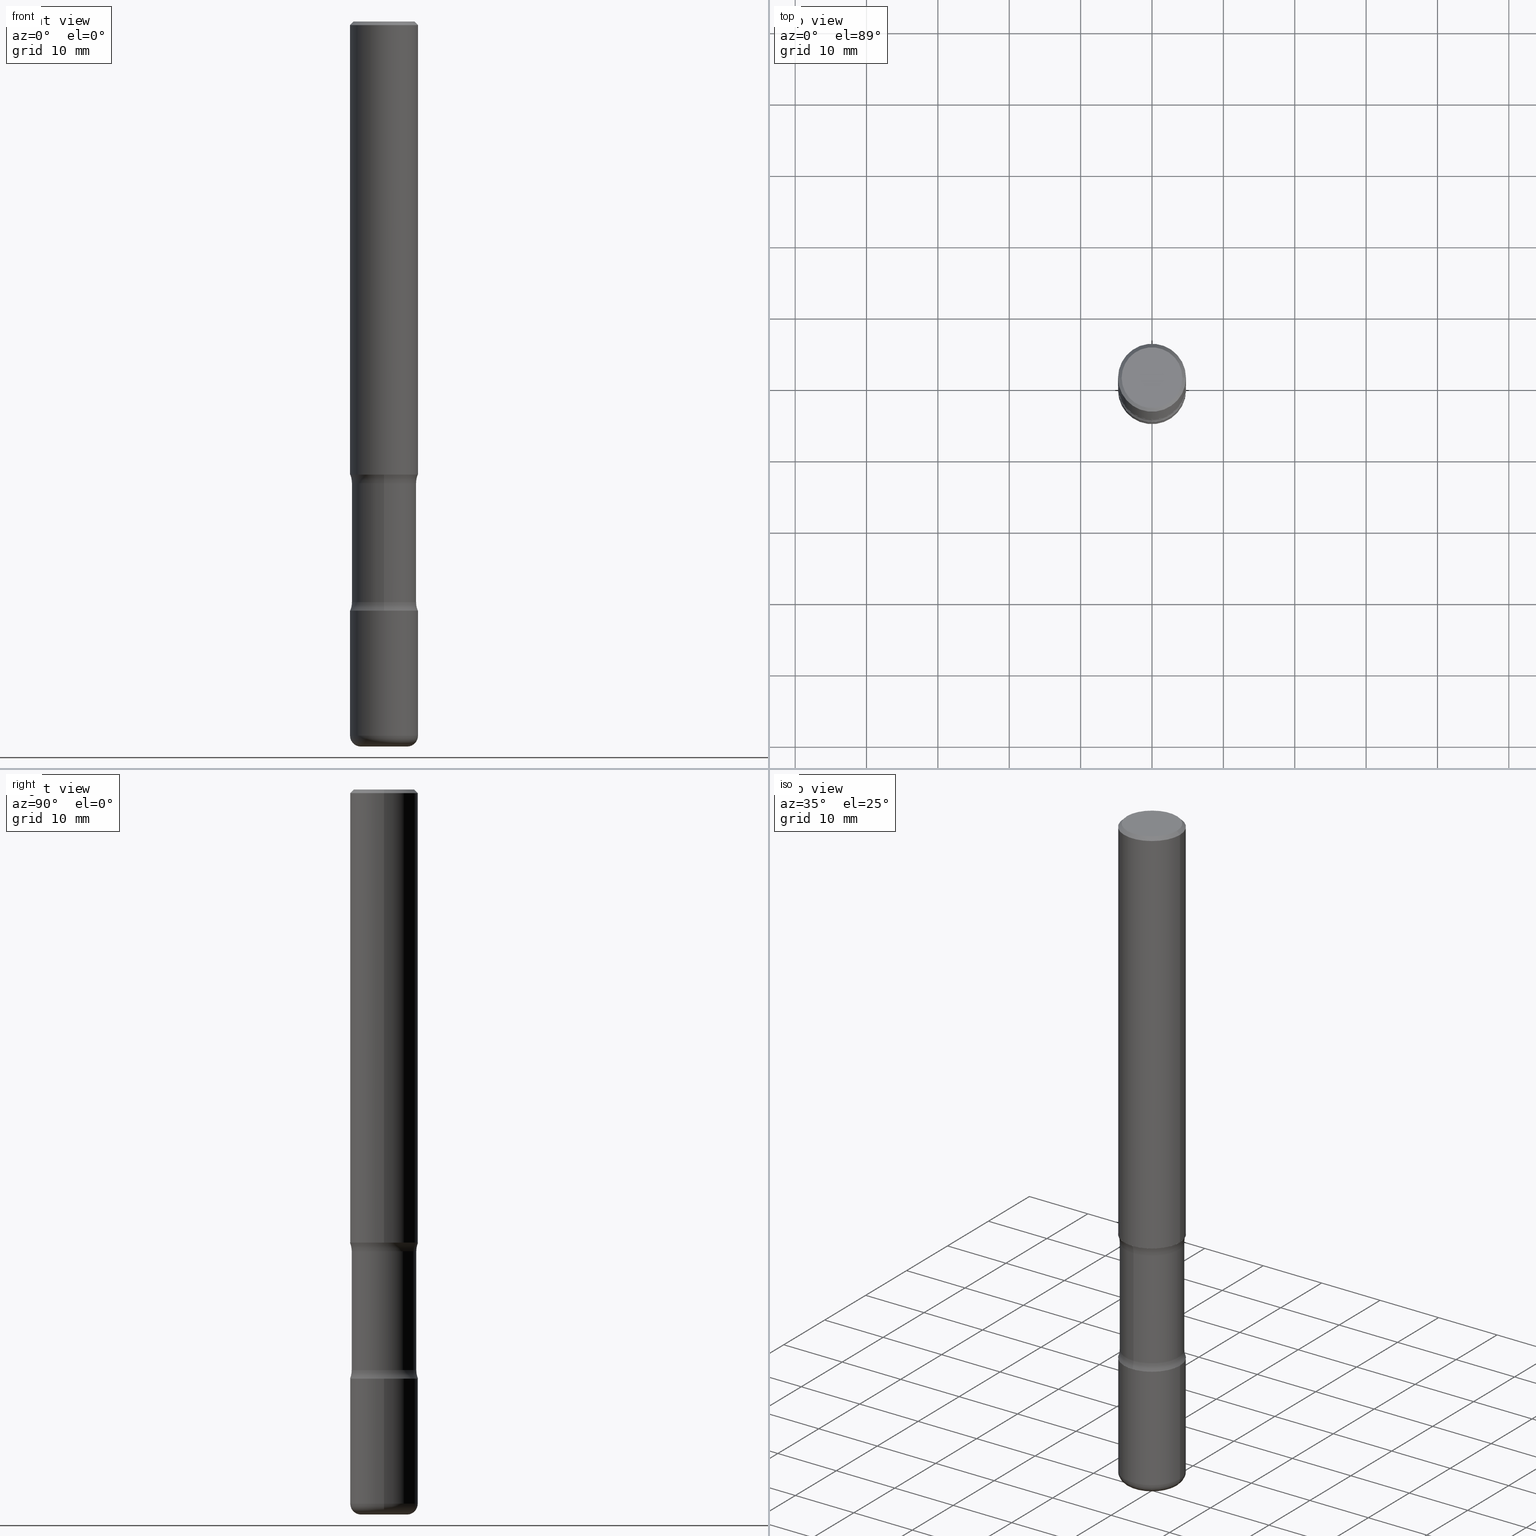
[diagram: canonical four-view strip — front | top / right | iso, engineering-drawing reading convention]
A machine part, canonical four-view strip (front | top / right | iso — engineering-drawing reading convention). The complete STEP part file that produces these views, byte-faithful:
ISO-10303-21;
HEADER;
FILE_DESCRIPTION (( 'STEP AP203' ),
    '1' );
FILE_NAME ('37848.STEP',
    '2024-03-02T00:46:15',
    ( '' ),
    ( '' ),
    'SwSTEP 2.0',
    'SolidWorks 2023',
    '' );
FILE_SCHEMA (( 'CONFIG_CONTROL_DESIGN' ));
ENDSEC;

DATA;
#1 = CYLINDRICAL_SURFACE ( 'NONE', #385, 0.1875000000000001110 ) ;
#2 = EDGE_LOOP ( 'NONE', ( #504, #130 ) ) ;
#3 = CC_DESIGN_PERSON_AND_ORGANIZATION_ASSIGNMENT ( #361, #550, ( #209 ) ) ;
#4 = LINE ( 'NONE', #558, #125 ) ;
#5 = VERTEX_POINT ( 'NONE', #184 ) ;
#6 = CARTESIAN_POINT ( 'NONE',  ( 0.1275000000000001132, -1.464676421644699397E-14, -3.939999999999999947 ) ) ;
#7 = VERTEX_POINT ( 'NONE', #391 ) ;
#8 = SECURITY_CLASSIFICATION ( '', '', #540 ) ;
#9 = DIRECTION ( 'NONE',  ( 1.000000000000000000, -6.982962677686266711E-15, 4.876176775795935793E-29 ) ) ;
#10 = ORIENTED_EDGE ( 'NONE', *, *, #202, .F. ) ;
#11 = CARTESIAN_POINT ( 'NONE',  ( 6.158285255761511137E-29, -8.996978653423909512E-15, -2.547495887979908780 ) ) ;
#12 = EDGE_CURVE ( 'NONE', #384, #521, #16, .T. ) ;
#13 = ORIENTED_EDGE ( 'NONE', *, *, #194, .F. ) ;
#14 = DIRECTION ( 'NONE',  ( -1.000000000000000000, 6.982962677686265922E-15, 0.000000000000000000 ) ) ;
#15 = DIRECTION ( 'NONE',  ( 1.000000000000000000, -6.860497997771530774E-15, 4.842784365940769113E-29 ) ) ;
#16 = CIRCLE ( 'NONE', #450, 0.1875000000000001388 ) ;
#17 = AXIS2_PLACEMENT_3D ( 'NONE', #549, #460, #406 ) ;
#18 =( NAMED_UNIT ( * ) SI_UNIT ( $, .STERADIAN. ) SOLID_ANGLE_UNIT ( ) );
#19 = VERTEX_POINT ( 'NONE', #103 ) ;
#20 = ADVANCED_FACE ( 'NONE', ( #355 ), #52, .T. ) ;
#21 = ORIENTED_EDGE ( 'NONE', *, *, #308, .F. ) ;
#22 = EDGE_LOOP ( 'NONE', ( #257, #424, #528, #471 ) ) ;
#23 = VECTOR ( 'NONE', #156, 39.37007874015748143 ) ;
#24 = CIRCLE ( 'NONE', #303, 0.1781249999999999500 ) ;
#25 = APPROVAL_DATE_TIME ( #325, #553 ) ;
#26 = DIRECTION ( 'NONE',  ( -2.445468806185136597E-29, 3.491481338843145583E-15, 1.000000000000000000 ) ) ;
#27 = LINE ( 'NONE', #551, #118 ) ;
#28 = EDGE_CURVE ( 'NONE', #175, #288, #321, .T. ) ;
#29 = DIRECTION ( 'NONE',  ( 6.982962677686265133E-15, 1.000000000000000000, -3.067338098149349483E-15 ) ) ;
#30 = CIRCLE ( 'NONE', #171, 0.1875000000000001110 ) ;
#31 = PERSON_AND_ORGANIZATION ( #556, #465 ) ;
#32 = LOCAL_TIME ( 19, 46, 15.00000000000000000, #228 ) ;
#33 = DIRECTION ( 'NONE',  ( -2.445468806185136597E-29, 3.491481338843145583E-15, 1.000000000000000000 ) ) ;
#34 = ORIENTED_EDGE ( 'NONE', *, *, #12, .T. ) ;
#35 = CC_DESIGN_DATE_AND_TIME_ASSIGNMENT ( #71, #547, ( #8 ) ) ;
#36 = FACE_OUTER_BOUND ( 'NONE', #120, .T. ) ;
#37 = ORIENTED_EDGE ( 'NONE', *, *, #393, .T. ) ;
#38 = DIRECTION ( 'NONE',  ( -2.438088387897960049E-29, 3.491481338843145188E-15, 1.000000000000000000 ) ) ;
#39 = ORIENTED_EDGE ( 'NONE', *, *, #57, .F. ) ;
#40 = AXIS2_PLACEMENT_3D ( 'NONE', #121, #336, #79 ) ;
#41 = DIRECTION ( 'NONE',  ( -2.445468806185136597E-29, 3.491481338843145583E-15, 1.000000000000000000 ) ) ;
#42 = EDGE_CURVE ( 'NONE', #260, #89, #150, .T. ) ;
#43 = ORIENTED_EDGE ( 'NONE', *, *, #225, .F. ) ;
#44 = PLANE ( 'NONE',  #160 ) ;
#45 = EDGE_LOOP ( 'NONE', ( #39, #99, #34, #21 ) ) ;
#46 = ORIENTED_EDGE ( 'NONE', *, *, #270, .F. ) ;
#47 = DIRECTION ( 'NONE',  ( 2.438088387897960049E-29, -3.491481338843145188E-15, -1.000000000000000000 ) ) ;
#48 = ORIENTED_EDGE ( 'NONE', *, *, #542, .T. ) ;
#49 = AXIS2_PLACEMENT_3D ( 'NONE', #408, #33, #119 ) ;
#50 = APPROVAL ( #114, 'UNSPECIFIED' ) ;
#51 = CARTESIAN_POINT ( 'NONE',  ( 9.866784870866931853E-29, -1.384432990936266734E-14, -4.000000000000000000 ) ) ;
#52 = CYLINDRICAL_SURFACE ( 'NONE', #530, 0.1875000000000000278 ) ;
#53 =( LENGTH_UNIT ( ) NAMED_UNIT ( * ) SI_UNIT ( $, .METRE. ) );
#54 = EDGE_LOOP ( 'NONE', ( #473, #201, #560, #291 ) ) ;
#55 = DIRECTION ( 'NONE',  ( 2.558681667686983511E-29, -3.329354077496592524E-15, -1.000000000000000000 ) ) ;
#56 = PLANE ( 'NONE',  #441 ) ;
#57 = EDGE_CURVE ( 'NONE', #149, #461, #292, .T. ) ;
#58 = AXIS2_PLACEMENT_3D ( 'NONE', #478, #83, #470 ) ;
#59 =( GEOMETRIC_REPRESENTATION_CONTEXT ( 3 ) GLOBAL_UNCERTAINTY_ASSIGNED_CONTEXT ( ( #524 ) ) GLOBAL_UNIT_ASSIGNED_CONTEXT ( ( #438, #398, #18 ) ) REPRESENTATION_CONTEXT ( 'NONE', 'WORKASPACE' ) );
#60 = DIRECTION ( 'NONE',  ( -2.558681667686982950E-29, 3.329354077496592524E-15, 1.000000000000000000 ) ) ;
#61 = CARTESIAN_POINT ( 'NONE',  ( 0.000000000000000000, 0.000000000000000000, 0.000000000000000000 ) ) ;
#62 = FACE_OUTER_BOUND ( 'NONE', #377, .T. ) ;
#63 = APPROVAL_STATUS ( 'not_yet_approved' ) ;
#64 = AXIS2_PLACEMENT_3D ( 'NONE', #200, #26, #146 ) ;
#65 = SHAPE_DEFINITION_REPRESENTATION ( #488, #458 ) ;
#66 = CC_DESIGN_DATE_AND_TIME_ASSIGNMENT ( #155, #403, ( #209 ) ) ;
#67 = DIRECTION ( 'NONE',  ( -1.000000000000000000, 6.982962677686265922E-15, -4.876176775795935793E-29 ) ) ;
#68 = CARTESIAN_POINT ( 'NONE',  ( 1.243840226962964471E-15, 0.1781249999999861278, -4.000000000000000888 ) ) ;
#69 = ADVANCED_FACE ( 'NONE', ( #483 ), #440, .F. ) ;
#70 = VERTEX_POINT ( 'NONE', #217 ) ;
#71 = DATE_AND_TIME ( #320, #152 ) ;
#72 = DIRECTION ( 'NONE',  ( -2.445468806185136877E-29, 3.491481338843145188E-15, 1.000000000000000000 ) ) ;
#73 = VERTEX_POINT ( 'NONE', #309 ) ;
#74 = EDGE_CURVE ( 'NONE', #19, #7, #197, .T. ) ;
#75 = TOROIDAL_SURFACE ( 'NONE', #442, 0.3031249999999999778, 0.1250000000000000278 ) ;
#76 = AXIS2_PLACEMENT_3D ( 'NONE', #352, #185, #443 ) ;
#77 = LINE ( 'NONE', #511, #277 ) ;
#78 = EDGE_LOOP ( 'NONE', ( #147, #124, #342, #382 ) ) ;
#79 = DIRECTION ( 'NONE',  ( -1.000000000000000000, 6.982962677686265922E-15, -4.876176775795935793E-29 ) ) ;
#80 = CARTESIAN_POINT ( 'NONE',  ( 0.1874999999999999167, -1.356173001359024677E-15, -0.02000000000000006981 ) ) ;
#81 = ORIENTED_EDGE ( 'NONE', *, *, #455, .T. ) ;
#82 = AXIS2_PLACEMENT_3D ( 'NONE', #534, #141, #444 ) ;
#83 = DIRECTION ( 'NONE',  ( -2.445468806185136597E-29, 3.491481338843145583E-15, 1.000000000000000000 ) ) ;
#84 = LOCAL_TIME ( 19, 46, 15.00000000000000000, #237 ) ;
#85 = ORIENTED_EDGE ( 'NONE', *, *, #112, .F. ) ;
#86 = DIRECTION ( 'NONE',  ( 1.000000000000000000, -6.982962677686269866E-15, 0.000000000000000000 ) ) ;
#87 = ORIENTED_EDGE ( 'NONE', *, *, #74, .F. ) ;
#88 = DIRECTION ( 'NONE',  ( 6.860497997771532351E-15, 1.000000000000000000, 0.000000000000000000 ) ) ;
#89 = VERTEX_POINT ( 'NONE', #492 ) ;
#90 = EDGE_CURVE ( 'NONE', #288, #286, #258, .T. ) ;
#91 = CIRCLE ( 'NONE', #49, 0.1875000000000001110 ) ;
#92 = ORIENTED_EDGE ( 'NONE', *, *, #261, .F. ) ;
#93 = CARTESIAN_POINT ( 'NONE',  ( 4.890937612370289799E-31, -6.982962677686315028E-17, -0.02000000000000006981 ) ) ;
#94 = CARTESIAN_POINT ( 'NONE',  ( -2.079588455574416777E-15, -0.3031250000000111355, -3.202504112020090776 ) ) ;
#95 = CARTESIAN_POINT ( 'NONE',  ( 6.150289227201164007E-29, -9.008429421428009851E-15, -2.547495887979908780 ) ) ;
#96 = ADVANCED_FACE ( 'NONE', ( #350 ), #446, .T. ) ;
#97 = ORIENTED_EDGE ( 'NONE', *, *, #270, .T. ) ;
#98 = CYLINDRICAL_SURFACE ( 'NONE', #182, 0.1781249999999999500 ) ;
#99 = ORIENTED_EDGE ( 'NONE', *, *, #386, .T. ) ;
#100 = CIRCLE ( 'NONE', #501, 0.1674999999999998990 ) ;
#101 = APPROVAL_PERSON_ORGANIZATION ( #31, #50, #454 ) ;
#102 = DIRECTION ( 'NONE',  ( 6.982962677686266711E-15, 1.000000000000000000, -3.067338098149349089E-15 ) ) ;
#103 = CARTESIAN_POINT ( 'NONE',  ( -0.1875000000000001110, -1.242416884549180617E-14, -3.939999999999999947 ) ) ;
#104 = APPROVAL_ROLE ( '' ) ;
#105 = ORIENTED_EDGE ( 'NONE', *, *, #404, .F. ) ;
#106 = ADVANCED_FACE ( 'NONE', ( #62 ), #56, .F. ) ;
#107 = PERSON_AND_ORGANIZATION ( #556, #465 ) ;
#108 = DIRECTION ( 'NONE',  ( -2.445468806185136877E-29, 3.491481338843145188E-15, 1.000000000000000000 ) ) ;
#109 = ORIENTED_EDGE ( 'NONE', *, *, #225, .T. ) ;
#110 = CIRCLE ( 'NONE', #430, 0.1250000000000000278 ) ;
#111 = CARTESIAN_POINT ( 'NONE',  ( 4.890937612370289799E-31, -6.982962677686315028E-17, -0.02000000000000006981 ) ) ;
#112 = EDGE_CURVE ( 'NONE', #5, #122, #531, .T. ) ;
#113 = DIRECTION ( 'NONE',  ( 1.000000000000000000, -6.982962677686265922E-15, 4.876176775795935793E-29 ) ) ;
#114 = APPROVAL_STATUS ( 'not_yet_approved' ) ;
#115 = CARTESIAN_POINT ( 'NONE',  ( 0.000000000000000000, 0.000000000000000000, 0.000000000000000000 ) ) ;
#116 = EDGE_LOOP ( 'NONE', ( #485, #498, #109, #85 ) ) ;
#117 = CIRCLE ( 'NONE', #311, 0.1874999999999999167 ) ;
#118 = VECTOR ( 'NONE', #449, 39.37007874015748143 ) ;
#119 = DIRECTION ( 'NONE',  ( 1.000000000000000000, -6.982962677686263555E-15, 0.000000000000000000 ) ) ;
#120 = EDGE_LOOP ( 'NONE', ( #299, #211, #468, #296 ) ) ;
#121 = CARTESIAN_POINT ( 'NONE',  ( 1.169646248512448806E-15, 0.1674999999999998990, -5.848231242562264739E-16 ) ) ;
#122 = VERTEX_POINT ( 'NONE', #401 ) ;
#123 = ADVANCED_FACE ( 'NONE', ( #359 ), #402, .F. ) ;
#124 = ORIENTED_EDGE ( 'NONE', *, *, #469, .F. ) ;
#125 = VECTOR ( 'NONE', #376, 39.37007874015748143 ) ;
#126 = CARTESIAN_POINT ( 'NONE',  ( 6.113672015462842613E-29, -8.728703347107864943E-15, -2.500000000000000000 ) ) ;
#127 = VERTEX_POINT ( 'NONE', #144 ) ;
#128 = DIRECTION ( 'NONE',  ( 1.000000000000000000, -6.982962677686265922E-15, 0.000000000000000000 ) ) ;
#129 = EDGE_CURVE ( 'NONE', #73, #286, #180, .T. ) ;
#130 = ORIENTED_EDGE ( 'NONE', *, *, #112, .T. ) ;
#131 = DIRECTION ( 'NONE',  ( -2.445468806185136877E-29, 3.491481338843145188E-15, 1.000000000000000000 ) ) ;
#132 = ORIENTED_EDGE ( 'NONE', *, *, #469, .T. ) ;
#133 = CLOSED_SHELL ( 'NONE', ( #283, #69, #427, #371, #532, #106, #123, #500 ) ) ;
#134 = LENGTH_MEASURE_WITH_UNIT ( LENGTH_MEASURE( 0.02539999999999999897 ), #53 );
#135 = TOROIDAL_SURFACE ( 'NONE', #546, 0.1275000000000001132, 0.05999999999999996309 ) ;
#136 = CARTESIAN_POINT ( 'NONE',  ( 9.781875224740546387E-29, -1.396592535537258233E-14, -4.000000000000000000 ) ) ;
#137 = ADVANCED_FACE ( 'NONE', ( #410 ), #199, .F. ) ;
#138 = DIRECTION ( 'NONE',  ( 1.000000000000000000, -6.982962677686269866E-15, 0.000000000000000000 ) ) ;
#139 = PLANE ( 'NONE',  #233 ) ;
#140 = DIRECTION ( 'NONE',  ( 6.982962677686266711E-15, 1.000000000000000000, -3.067338098149349089E-15 ) ) ;
#141 = DIRECTION ( 'NONE',  ( 2.558681667686983511E-29, -3.329354077496592524E-15, -1.000000000000000000 ) ) ;
#142 = AXIS2_PLACEMENT_3D ( 'NONE', #94, #15, #181 ) ;
#143 = CIRCLE ( 'NONE', #432, 0.1674999999999998990 ) ;
#144 = CARTESIAN_POINT ( 'NONE',  ( 0.1674999999999998990, -1.252653207992877500E-15, 8.469775550109235181E-30 ) ) ;
#145 = PERSON_AND_ORGANIZATION_ROLE ( 'design_owner' ) ;
#146 = DIRECTION ( 'NONE',  ( 1.000000000000000000, -6.982962677686269866E-15, 0.000000000000000000 ) ) ;
#147 = ORIENTED_EDGE ( 'NONE', *, *, #386, .F. ) ;
#148 = CARTESIAN_POINT ( 'NONE',  ( -0.1875000000000001110, 1.332267629550188637E-15, -9.223003294227953596E-30 ) ) ;
#149 = VERTEX_POINT ( 'NONE', #278 ) ;
#150 = CIRCLE ( 'NONE', #545, 0.1275000000000001132 ) ;
#151 = AXIS2_PLACEMENT_3D ( 'NONE', #373, #241, #67 ) ;
#152 = LOCAL_TIME ( 19, 46, 15.00000000000000000, #409 ) ;
#153 = EDGE_CURVE ( 'NONE', #19, #5, #508, .T. ) ;
#154 = CARTESIAN_POINT ( 'NONE',  ( 7.826246762236988201E-29, -1.118918372292999451E-14, -3.202504112020091664 ) ) ;
#155 = DATE_AND_TIME ( #327, #84 ) ;
#156 = DIRECTION ( 'NONE',  ( 2.558681667686983511E-29, -3.329354077496592524E-15, -1.000000000000000000 ) ) ;
#157 = ORIENTED_EDGE ( 'NONE', *, *, #229, .T. ) ;
#158 = DIRECTION ( 'NONE',  ( -2.445468806185136597E-29, 3.491481338843145583E-15, 1.000000000000000000 ) ) ;
#159 = ORIENTED_EDGE ( 'NONE', *, *, #129, .T. ) ;
#160 = AXIS2_PLACEMENT_3D ( 'NONE', #174, #38, #213 ) ;
#161 = PRODUCT_DEFINITION_FORMATION_WITH_SPECIFIED_SOURCE ( 'ANY', '', #230, .NOT_KNOWN. ) ;
#162 = DIRECTION ( 'NONE',  ( 1.000000000000000000, -6.982962677686269866E-15, 4.883557194083114022E-29 ) ) ;
#163 = ORIENTED_EDGE ( 'NONE', *, *, #12, .F. ) ;
#164 = ADVANCED_FACE ( 'NONE', ( #276 ), #284, .T. ) ;
#165 = DIRECTION ( 'NONE',  ( -2.445468806185136597E-29, 3.491481338843145583E-15, 1.000000000000000000 ) ) ;
#166 = ORIENTED_EDGE ( 'NONE', *, *, #416, .F. ) ;
#167 = EDGE_CURVE ( 'NONE', #388, #339, #77, .T. ) ;
#168 = DIRECTION ( 'NONE',  ( -2.445468806185136597E-29, 3.491481338843145583E-15, 1.000000000000000000 ) ) ;
#169 = ORIENTED_EDGE ( 'NONE', *, *, #229, .F. ) ;
#170 = APPROVAL ( #281, 'UNSPECIFIED' ) ;
#171 = AXIS2_PLACEMENT_3D ( 'NONE', #126, #41, #378 ) ;
#172 = DIRECTION ( 'NONE',  ( -2.445468806185136597E-29, 3.491481338843145583E-15, 1.000000000000000000 ) ) ;
#173 = ORIENTED_EDGE ( 'NONE', *, *, #42, .F. ) ;
#174 = CARTESIAN_POINT ( 'NONE',  ( 6.113672015462842613E-29, -8.728703347107864943E-15, -2.500000000000000000 ) ) ;
#175 = VERTEX_POINT ( 'NONE', #366 ) ;
#176 = FACE_OUTER_BOUND ( 'NONE', #334, .T. ) ;
#177 = CARTESIAN_POINT ( 'NONE',  ( 6.028762369336457147E-29, -8.850298793117778356E-15, -2.500000000000000000 ) ) ;
#178 = CLOSED_SHELL ( 'NONE', ( #418, #315, #411, #164, #380, #137 ) ) ;
#179 = DIRECTION ( 'NONE',  ( 2.445468806185136597E-29, -3.491481338843145583E-15, -1.000000000000000000 ) ) ;
#180 = CIRCLE ( 'NONE', #212, 0.1781249999999999223 ) ;
#181 = DIRECTION ( 'NONE',  ( 6.860497997771529985E-15, 1.000000000000000000, 0.000000000000000000 ) ) ;
#182 = AXIS2_PLACEMENT_3D ( 'NONE', #51, #304, #533 ) ;
#183 = CARTESIAN_POINT ( 'NONE',  ( 7.947773620101696182E-29, -1.134731435124022600E-14, -3.250000000000000444 ) ) ;
#184 = CARTESIAN_POINT ( 'NONE',  ( -0.1875000000000000833, -1.121960778359092137E-14, -3.250000000000000444 ) ) ;
#185 = DIRECTION ( 'NONE',  ( -1.000000000000000000, 6.982962677686265922E-15, -4.883557194083112901E-29 ) ) ;
#186 = DIRECTION ( 'NONE',  ( -2.445468806185136597E-29, 3.491481338843145583E-15, 1.000000000000000000 ) ) ;
#187 = DIRECTION ( 'NONE',  ( 1.000000000000000000, 0.000000000000000000, 0.000000000000000000 ) ) ;
#188 = EDGE_CURVE ( 'NONE', #521, #384, #557, .T. ) ;
#189 = CARTESIAN_POINT ( 'NONE',  ( 7.947773620101696182E-29, -1.134731435124022600E-14, -3.250000000000000444 ) ) ;
#190 = CIRCLE ( 'NONE', #474, 0.1875000000000001388 ) ;
#191 = AXIS2_PLACEMENT_3D ( 'NONE', #183, #307, #354 ) ;
#192 = CARTESIAN_POINT ( 'NONE',  ( 9.635147096369438236E-29, -1.375643647504199401E-14, -3.939999999999999947 ) ) ;
#193 = DIRECTION ( 'NONE',  ( 6.982962677686265133E-15, 1.000000000000000000, -3.067338098149349483E-15 ) ) ;
#194 = EDGE_CURVE ( 'NONE', #127, #331, #100, .T. ) ;
#195 = PERSON_AND_ORGANIZATION ( #556, #465 ) ;
#196 = DIRECTION ( 'NONE',  ( -2.445468806185136877E-29, 3.491481338843145188E-15, 1.000000000000000000 ) ) ;
#197 = CIRCLE ( 'NONE', #464, 0.1875000000000001388 ) ;
#198 = COORDINATED_UNIVERSAL_TIME_OFFSET ( 5, 0, .BEHIND. ) ;
#199 = PLANE ( 'NONE',  #151 ) ;
#200 = CARTESIAN_POINT ( 'NONE',  ( 9.781875224740546387E-29, -1.396592535537258233E-14, -4.000000000000000000 ) ) ;
#201 = ORIENTED_EDGE ( 'NONE', *, *, #167, .T. ) ;
#202 = EDGE_CURVE ( 'NONE', #461, #73, #236, .T. ) ;
#203 = FACE_OUTER_BOUND ( 'NONE', #116, .T. ) ;
#204 = ORIENTED_EDGE ( 'NONE', *, *, #300, .F. ) ;
#205 = AXIS2_PLACEMENT_3D ( 'NONE', #527, #343, #128 ) ;
#206 = DIRECTION ( 'NONE',  ( 2.558681667686983511E-29, -3.329354077496592524E-15, -1.000000000000000000 ) ) ;
#207 = ORIENTED_EDGE ( 'NONE', *, *, #235, .F. ) ;
#208 = ORIENTED_EDGE ( 'NONE', *, *, #261, .T. ) ;
#209 = PRODUCT_DEFINITION ( 'UNKNOWN', '', #161, #301 ) ;
#210 = CARTESIAN_POINT ( 'NONE',  ( 7.947773620101696182E-29, -1.134731435124022600E-14, -3.250000000000000444 ) ) ;
#211 = ORIENTED_EDGE ( 'NONE', *, *, #484, .F. ) ;
#212 = AXIS2_PLACEMENT_3D ( 'NONE', #154, #453, #29 ) ;
#213 = DIRECTION ( 'NONE',  ( 1.000000000000000000, -6.982962677686265922E-15, 4.876176775795935793E-29 ) ) ;
#214 = APPROVAL_PERSON_ORGANIZATION ( #107, #170, #104 ) ;
#215 = EDGE_LOOP ( 'NONE', ( #466, #298, #169, #434 ) ) ;
#216 = DIRECTION ( 'NONE',  ( 6.982962677686265922E-15, 1.000000000000000000, -3.329354077496592524E-15 ) ) ;
#217 = CARTESIAN_POINT ( 'NONE',  ( 0.1874999999999999167, -1.356173001359024677E-15, -0.02000000000000006981 ) ) ;
#218 = EDGE_CURVE ( 'NONE', #89, #260, #332, .T. ) ;
#219 = EDGE_LOOP ( 'NONE', ( #166, #92 ) ) ;
#220 = AXIS2_PLACEMENT_3D ( 'NONE', #111, #456, #374 ) ;
#221 = DIRECTION ( 'NONE',  ( 6.982962677686266711E-15, 1.000000000000000000, -3.329354077496592130E-15 ) ) ;
#222 = CC_DESIGN_SECURITY_CLASSIFICATION ( #8, ( #161 ) ) ;
#223 = FACE_OUTER_BOUND ( 'NONE', #246, .T. ) ;
#224 = DIRECTION ( 'NONE',  ( 1.000000000000000000, -6.982962677686267499E-15, 0.000000000000000000 ) ) ;
#225 = EDGE_CURVE ( 'NONE', #7, #122, #280, .T. ) ;
#226 = DIRECTION ( 'NONE',  ( 0.000000000000000000, 0.000000000000000000, 1.000000000000000000 ) ) ;
#227 = DIRECTION ( 'NONE',  ( 1.000000000000000000, -6.982962677686269866E-15, 0.000000000000000000 ) ) ;
#228 = COORDINATED_UNIVERSAL_TIME_OFFSET ( 5, 0, .BEHIND. ) ;
#229 = EDGE_CURVE ( 'NONE', #7, #19, #190, .T. ) ;
#230 = PRODUCT ( '37848', '37848', '', ( #507 ) ) ;
#231 = DIRECTION ( 'NONE',  ( -2.445468806185136597E-29, 3.491481338843145583E-15, 1.000000000000000000 ) ) ;
#232 = AXIS2_PLACEMENT_3D ( 'NONE', #326, #506, #238 ) ;
#233 = AXIS2_PLACEMENT_3D ( 'NONE', #535, #400, #216 ) ;
#234 = PERSON_AND_ORGANIZATION ( #556, #465 ) ;
#235 = EDGE_CURVE ( 'NONE', #286, #73, #302, .T. ) ;
#236 = LINE ( 'NONE', #68, #23 ) ;
#237 = COORDINATED_UNIVERSAL_TIME_OFFSET ( 5, 0, .BEHIND. ) ;
#238 = DIRECTION ( 'NONE',  ( 1.000000000000000000, -6.982962677686269866E-15, 4.883557194083114022E-29 ) ) ;
#239 = EDGE_LOOP ( 'NONE', ( #479, #397, #426, #87 ) ) ;
#240 = APPROVAL_ROLE ( '' ) ;
#241 = DIRECTION ( 'NONE',  ( 2.438088387897960049E-29, -3.491481338843145188E-15, -1.000000000000000000 ) ) ;
#242 = CC_DESIGN_APPROVAL ( #170, ( #161 ) ) ;
#243 = DIRECTION ( 'NONE',  ( 2.558681667686983511E-29, -3.329354077496592524E-15, -1.000000000000000000 ) ) ;
#244 = ORIENTED_EDGE ( 'NONE', *, *, #319, .F. ) ;
#245 = CYLINDRICAL_SURFACE ( 'NONE', #58, 0.1875000000000001110 ) ;
#246 = EDGE_LOOP ( 'NONE', ( #46, #480, #429, #207 ) ) ;
#247 = DIRECTION ( 'NONE',  ( 0.7071067811865467956, -7.319954787623254468E-15, -0.7071067811865482389 ) ) ;
#248 = EDGE_LOOP ( 'NONE', ( #157, #515, #244, #43 ) ) ;
#249 = AXIS2_PLACEMENT_3D ( 'NONE', #497, #329, #193 ) ;
#250 = AXIS2_PLACEMENT_3D ( 'NONE', #93, #179, #14 ) ;
#251 = CARTESIAN_POINT ( 'NONE',  ( -0.1875000000000000833, -3.066998857392172722E-15, -2.500000000000000000 ) ) ;
#252 = CC_DESIGN_PERSON_AND_ORGANIZATION_ASSIGNMENT ( #195, #543, ( #161 ) ) ;
#253 = EDGE_LOOP ( 'NONE', ( #173, #363 ) ) ;
#254 = CARTESIAN_POINT ( 'NONE',  ( -2.079588455574433343E-15, -0.3031250000000089706, -2.547495887979907891 ) ) ;
#255 = ORIENTED_EDGE ( 'NONE', *, *, #351, .T. ) ;
#256 = DIRECTION ( 'NONE',  ( 6.982962677686266711E-15, 1.000000000000000000, -3.329354077496592130E-15 ) ) ;
#257 = ORIENTED_EDGE ( 'NONE', *, *, #542, .F. ) ;
#258 = CIRCLE ( 'NONE', #142, 0.1250000000000000278 ) ;
#259 = DIRECTION ( 'NONE',  ( 7.105427357601001859E-15, 1.000000000000000000, -3.491481338843145583E-15 ) ) ;
#260 = VERTEX_POINT ( 'NONE', #412 ) ;
#261 = EDGE_CURVE ( 'NONE', #388, #526, #91, .T. ) ;
#262 = CARTESIAN_POINT ( 'NONE',  ( 1.309305502066236145E-15, 0.1874999999999913125, -2.500000000000000444 ) ) ;
#263 = DIRECTION ( 'NONE',  ( 1.000000000000000000, -6.982962677686265922E-15, 4.876176775795935793E-29 ) ) ;
#264 = DIRECTION ( 'NONE',  ( -2.445468806185136597E-29, 3.491481338843145583E-15, 1.000000000000000000 ) ) ;
#265 = ORIENTED_EDGE ( 'NONE', *, *, #28, .F. ) ;
#266 = DIMENSIONAL_EXPONENTS ( 1.000000000000000000, 0.000000000000000000, 0.000000000000000000, 0.000000000000000000, 0.000000000000000000, 0.000000000000000000, 0.000000000000000000 ) ;
#267 = AXIS2_PLACEMENT_3D ( 'NONE', #383, #47, #419 ) ;
#268 = CARTESIAN_POINT ( 'NONE',  ( 7.947773620101696182E-29, -1.134731435124022600E-14, -3.250000000000000444 ) ) ;
#269 = LOCAL_TIME ( 19, 46, 15.00000000000000000, #505 ) ;
#270 = EDGE_CURVE ( 'NONE', #149, #286, #27, .T. ) ;
#271 = DIRECTION ( 'NONE',  ( 1.000000000000000000, -6.982962677686273021E-15, 0.000000000000000000 ) ) ;
#272 = CARTESIAN_POINT ( 'NONE',  ( 0.000000000000000000, 0.000000000000000000, 0.000000000000000000 ) ) ;
#273 = CALENDAR_DATE ( 2024, 1, 3 ) ;
#274 = DIRECTION ( 'NONE',  ( 1.000000000000000000, -6.982962677686265922E-15, 4.876176775795935793E-29 ) ) ;
#275 = PERSON_AND_ORGANIZATION ( #556, #465 ) ;
#276 = FACE_OUTER_BOUND ( 'NONE', #239, .T. ) ;
#277 = VECTOR ( 'NONE', #196, 39.37007874015748143 ) ;
#278 = CARTESIAN_POINT ( 'NONE',  ( -1.254184790217547253E-15, -0.1781250000000089706, -2.547495887979908336 ) ) ;
#279 = PERSON_AND_ORGANIZATION_ROLE ( 'classification_officer' ) ;
#280 = LINE ( 'NONE', #282, #323 ) ;
#281 = APPROVAL_STATUS ( 'not_yet_approved' ) ;
#282 = CARTESIAN_POINT ( 'NONE',  ( 0.1875000000000001110, -1.309305502066175797E-15, 9.142831454617385217E-30 ) ) ;
#283 = ADVANCED_FACE ( 'NONE', ( #503 ), #463, .T. ) ;
#284 = TOROIDAL_SURFACE ( 'NONE', #232, 0.1275000000000001132, 0.05999999999999996309 ) ;
#285 = DIRECTION ( 'NONE',  ( -1.000000000000000000, 6.982962677686265922E-15, -4.883557194083112901E-29 ) ) ;
#286 = VERTEX_POINT ( 'NONE', #415 ) ;
#287 = FACE_OUTER_BOUND ( 'NONE', #78, .T. ) ;
#288 = VERTEX_POINT ( 'NONE', #322 ) ;
#289 = ADVANCED_FACE ( 'NONE', ( #36 ), #431, .T. ) ;
#290 = CARTESIAN_POINT ( 'NONE',  ( -0.1674999999999998990, 1.204561061900880061E-15, -8.301862719484106184E-30 ) ) ;
#291 = ORIENTED_EDGE ( 'NONE', *, *, #513, .F. ) ;
#292 = CIRCLE ( 'NONE', #365, 0.1781249999999999500 ) ;
#293 = AXIS2_PLACEMENT_3D ( 'NONE', #297, #206, #256 ) ;
#294 = APPLICATION_CONTEXT ( 'configuration controlled 3d designs of mechanical parts and assemblies' ) ;
#295 = PLANE ( 'NONE',  #267 ) ;
#296 = ORIENTED_EDGE ( 'NONE', *, *, #300, .T. ) ;
#297 = CARTESIAN_POINT ( 'NONE',  ( 6.158285255761511137E-29, -8.996978653423909512E-15, -2.547495887979908780 ) ) ;
#298 = ORIENTED_EDGE ( 'NONE', *, *, #493, .T. ) ;
#299 = ORIENTED_EDGE ( 'NONE', *, *, #393, .F. ) ;
#300 = EDGE_CURVE ( 'NONE', #339, #70, #117, .T. ) ;
#301 = DESIGN_CONTEXT ( 'detailed design', #294, 'design' ) ;
#302 = CIRCLE ( 'NONE', #249, 0.1781249999999999223 ) ;
#303 = AXIS2_PLACEMENT_3D ( 'NONE', #95, #346, #102 ) ;
#304 = DIRECTION ( 'NONE',  ( 2.558681667686983511E-29, -3.329354077496592524E-15, -1.000000000000000000 ) ) ;
#305 = CARTESIAN_POINT ( 'NONE',  ( 9.635147096369438236E-29, -1.375643647504199401E-14, -3.939999999999999947 ) ) ;
#306 = CARTESIAN_POINT ( 'NONE',  ( 7.831623907624765469E-29, -1.118148334468659010E-14, -3.202504112020091664 ) ) ;
#307 = DIRECTION ( 'NONE',  ( 2.558681667686983511E-29, -3.329354077496592524E-15, -1.000000000000000000 ) ) ;
#308 = EDGE_CURVE ( 'NONE', #461, #521, #110, .T. ) ;
#309 = CARTESIAN_POINT ( 'NONE',  ( 1.243840226962943961E-15, 0.1781249999999887368, -3.202504112020092553 ) ) ;
#310 = LINE ( 'NONE', #389, #548 ) ;
#311 = AXIS2_PLACEMENT_3D ( 'NONE', #554, #158, #423 ) ;
#312 = DIRECTION ( 'NONE',  ( 2.558681667686983511E-29, -3.329354077496592524E-15, -1.000000000000000000 ) ) ;
#313 = LOCAL_TIME ( 19, 46, 15.00000000000000000, #198 ) ;
#314 = CARTESIAN_POINT ( 'NONE',  ( 7.831623907624765469E-29, -1.118148334468659010E-14, -3.202504112020091664 ) ) ;
#315 = ADVANCED_FACE ( 'NONE', ( #514 ), #135, .T. ) ;
#316 = DATE_AND_TIME ( #494, #269 ) ;
#317 = DIRECTION ( 'NONE',  ( 6.982962677686266711E-15, 1.000000000000000000, -3.329354077496592130E-15 ) ) ;
#318 = ORIENTED_EDGE ( 'NONE', *, *, #90, .F. ) ;
#319 = EDGE_CURVE ( 'NONE', #122, #5, #394, .T. ) ;
#320 = CALENDAR_DATE ( 2024, 1, 3 ) ;
#321 = CIRCLE ( 'NONE', #82, 0.1875000000000000833 ) ;
#322 = CARTESIAN_POINT ( 'NONE',  ( -1.286343374582083282E-15, -0.1875000000000114075, -3.250000000000000000 ) ) ;
#323 = VECTOR ( 'NONE', #72, 39.37007874015748143 ) ;
#324 = ORIENTED_EDGE ( 'NONE', *, *, #194, .T. ) ;
#325 = DATE_AND_TIME ( #452, #313 ) ;
#326 = CARTESIAN_POINT ( 'NONE',  ( 9.635147096369438236E-29, -1.375643647504199401E-14, -3.939999999999999947 ) ) ;
#327 = CALENDAR_DATE ( 2024, 1, 3 ) ;
#328 = CC_DESIGN_PERSON_AND_ORGANIZATION_ASSIGNMENT ( #234, #279, ( #8 ) ) ;
#329 = DIRECTION ( 'NONE',  ( 2.558681667686983511E-29, -3.329354077496592524E-15, -1.000000000000000000 ) ) ;
#330 = DIRECTION ( 'NONE',  ( 2.558681667686983511E-29, -3.329354077496592524E-15, -1.000000000000000000 ) ) ;
#331 = VERTEX_POINT ( 'NONE', #290 ) ;
#332 = CIRCLE ( 'NONE', #64, 0.1275000000000001132 ) ;
#333 = FACE_OUTER_BOUND ( 'NONE', #477, .T. ) ;
#334 = EDGE_LOOP ( 'NONE', ( #517, #163 ) ) ;
#335 = ADVANCED_FACE ( 'NONE', ( #472 ), #44, .F. ) ;
#336 = DIRECTION ( 'NONE',  ( 2.438088387897960049E-29, -3.491481338843145188E-15, -1.000000000000000000 ) ) ;
#337 = ORIENTED_EDGE ( 'NONE', *, *, #28, .T. ) ;
#338 = PLANE ( 'NONE',  #40 ) ;
#339 = VERTEX_POINT ( 'NONE', #381 ) ;
#340 = CC_DESIGN_APPROVAL ( #553, ( #8 ) ) ;
#341 = CARTESIAN_POINT ( 'NONE',  ( 2.116710561673711128E-15, 0.3031249999999910405, -2.547495887979910112 ) ) ;
#342 = ORIENTED_EDGE ( 'NONE', *, *, #308, .T. ) ;
#343 = DIRECTION ( 'NONE',  ( -2.445468806185136597E-29, 3.491481338843145583E-15, 1.000000000000000000 ) ) ;
#344 = CC_DESIGN_PERSON_AND_ORGANIZATION_ASSIGNMENT ( #407, #145, ( #230 ) ) ;
#345 = EDGE_LOOP ( 'NONE', ( #318, #265, #81, #159 ) ) ;
#346 = DIRECTION ( 'NONE',  ( 2.558681667686983511E-29, -3.329354077496592524E-15, -1.000000000000000000 ) ) ;
#347 = DIRECTION ( 'NONE',  ( 2.558681667686983511E-29, -3.329354077496592524E-15, -1.000000000000000000 ) ) ;
#348 = TOROIDAL_SURFACE ( 'NONE', #293, 0.3031249999999999778, 0.1250000000000000278 ) ;
#349 = DIRECTION ( 'NONE',  ( -6.982962677686266711E-15, -1.000000000000000000, 3.491481338843145583E-15 ) ) ;
#350 = FACE_OUTER_BOUND ( 'NONE', #54, .T. ) ;
#351 = EDGE_CURVE ( 'NONE', #70, #339, #451, .T. ) ;
#352 = CARTESIAN_POINT ( 'NONE',  ( 2.116710561673727694E-15, 0.3031249999999888201, -3.202504112020092997 ) ) ;
#353 = DIRECTION ( 'NONE',  ( 2.558681667686983511E-29, -3.329354077496592524E-15, -1.000000000000000000 ) ) ;
#354 = DIRECTION ( 'NONE',  ( 6.982962677686266711E-15, 1.000000000000000000, -2.913971193241879583E-15 ) ) ;
#355 = FACE_OUTER_BOUND ( 'NONE', #552, .T. ) ;
#356 = FACE_OUTER_BOUND ( 'NONE', #379, .T. ) ;
#357 = AXIS2_PLACEMENT_3D ( 'NONE', #390, #439, #274 ) ;
#358 = ADVANCED_FACE ( 'NONE', ( #333 ), #338, .F. ) ;
#359 = FACE_OUTER_BOUND ( 'NONE', #345, .T. ) ;
#360 = DIRECTION ( 'NONE',  ( 1.000000000000000000, -6.982962677686267499E-15, 0.000000000000000000 ) ) ;
#361 = PERSON_AND_ORGANIZATION ( #556, #465 ) ;
#362 = DIRECTION ( 'NONE',  ( 6.982962677686266711E-15, 1.000000000000000000, -3.067338098149349089E-15 ) ) ;
#363 = ORIENTED_EDGE ( 'NONE', *, *, #218, .F. ) ;
#364 = PERSON_AND_ORGANIZATION ( #556, #465 ) ;
#365 = AXIS2_PLACEMENT_3D ( 'NONE', #536, #347, #140 ) ;
#366 = CARTESIAN_POINT ( 'NONE',  ( 1.309305502066255275E-15, 0.1874999999999887867, -3.250000000000001332 ) ) ;
#367 = VECTOR ( 'NONE', #247, 39.37007874015748143 ) ;
#368 = MANIFOLD_SOLID_BREP ( 'Body-Move/Copy2[2]', #499 ) ;
#369 = CIRCLE ( 'NONE', #76, 0.1250000000000000278 ) ;
#370 = MANIFOLD_SOLID_BREP ( 'Body-Move/Copy2[1]', #178 ) ;
#371 = ADVANCED_FACE ( 'NONE', ( #287 ), #348, .F. ) ;
#372 = APPLICATION_PROTOCOL_DEFINITION ( 'international standard', 'config_control_design', 1994, #294 ) ;
#373 = CARTESIAN_POINT ( 'NONE',  ( 7.947773620101696182E-29, -1.134731435124022600E-14, -3.250000000000000444 ) ) ;
#374 = DIRECTION ( 'NONE',  ( -1.000000000000000000, 6.982962677686265922E-15, 0.000000000000000000 ) ) ;
#375 = MANIFOLD_SOLID_BREP ( 'Body-Move/Copy2[4]', #133 ) ;
#376 = DIRECTION ( 'NONE',  ( -0.7071067811865467956, 2.468850131082249172E-15, -0.7071067811865482389 ) ) ;
#377 = EDGE_LOOP ( 'NONE', ( #337, #48 ) ) ;
#378 = DIRECTION ( 'NONE',  ( 1.000000000000000000, -6.982962677686263555E-15, 0.000000000000000000 ) ) ;
#379 = EDGE_LOOP ( 'NONE', ( #13, #37, #255, #105 ) ) ;
#380 = ADVANCED_FACE ( 'NONE', ( #203 ), #245, .T. ) ;
#381 = CARTESIAN_POINT ( 'NONE',  ( -0.1874999999999999167, 1.239475875289311118E-15, -0.02000000000000006981 ) ) ;
#382 = ORIENTED_EDGE ( 'NONE', *, *, #188, .T. ) ;
#383 = CARTESIAN_POINT ( 'NONE',  ( 9.781875224740546387E-29, -1.396592535537258233E-14, -4.000000000000000000 ) ) ;
#384 = VERTEX_POINT ( 'NONE', #428 ) ;
#385 = AXIS2_PLACEMENT_3D ( 'NONE', #387, #165, #9 ) ;
#386 = EDGE_CURVE ( 'NONE', #149, #384, #421, .T. ) ;
#387 = CARTESIAN_POINT ( 'NONE',  ( 0.000000000000000000, 0.000000000000000000, 0.000000000000000000 ) ) ;
#388 = VERTEX_POINT ( 'NONE', #251 ) ;
#389 = CARTESIAN_POINT ( 'NONE',  ( 0.1875000000000000278, -1.309305502066175008E-15, 9.142831454617381013E-30 ) ) ;
#390 = CARTESIAN_POINT ( 'NONE',  ( 0.000000000000000000, 0.000000000000000000, 0.000000000000000000 ) ) ;
#391 = CARTESIAN_POINT ( 'NONE',  ( 0.1875000000000001110, -1.506574197710817060E-14, -3.939999999999999947 ) ) ;
#392 = APPLICATION_CONTEXT ( 'configuration controlled 3d designs of mechanical parts and assemblies' ) ;
#393 = EDGE_CURVE ( 'NONE', #127, #70, #417, .T. ) ;
#394 = CIRCLE ( 'NONE', #413, 0.1875000000000000833 ) ;
#395 = AXIS2_PLACEMENT_3D ( 'NONE', #6, #349, #271 ) ;
#396 = DIRECTION ( 'NONE',  ( -1.000000000000000000, 7.105427357600996337E-15, 0.000000000000000000 ) ) ;
#397 = ORIENTED_EDGE ( 'NONE', *, *, #218, .T. ) ;
#398 =( NAMED_UNIT ( * ) PLANE_ANGLE_UNIT ( ) SI_UNIT ( $, .RADIAN. ) );
#399 = DIRECTION ( 'NONE',  ( -6.982962677686265922E-15, -1.000000000000000000, 3.329354077496592524E-15 ) ) ;
#400 = DIRECTION ( 'NONE',  ( 2.558681667686982950E-29, -3.329354077496592524E-15, -1.000000000000000000 ) ) ;
#401 = CARTESIAN_POINT ( 'NONE',  ( 0.1875000000000000833, -1.265661985330640259E-14, -3.250000000000000444 ) ) ;
#402 = TOROIDAL_SURFACE ( 'NONE', #510, 0.3031249999999999778, 0.1250000000000000278 ) ;
#403 = DATE_TIME_ROLE ( 'creation_date' ) ;
#404 = EDGE_CURVE ( 'NONE', #331, #339, #4, .T. ) ;
#405 = CIRCLE ( 'NONE', #502, 0.05999999999999995615 ) ;
#406 = DIRECTION ( 'NONE',  ( 6.982962677686266711E-15, 1.000000000000000000, -2.913971193241878794E-15 ) ) ;
#407 = PERSON_AND_ORGANIZATION ( #556, #465 ) ;
#408 = CARTESIAN_POINT ( 'NONE',  ( 6.113672015462842613E-29, -8.728703347107864943E-15, -2.500000000000000000 ) ) ;
#409 = COORDINATED_UNIVERSAL_TIME_OFFSET ( 5, 0, .BEHIND. ) ;
#410 = FACE_OUTER_BOUND ( 'NONE', #2, .T. ) ;
#411 = ADVANCED_FACE ( 'NONE', ( #519 ), #295, .T. ) ;
#412 = CARTESIAN_POINT ( 'NONE',  ( 0.1275000000000001132, -1.485625309677758386E-14, -4.000000000000000000 ) ) ;
#413 = AXIS2_PLACEMENT_3D ( 'NONE', #210, #172, #86 ) ;
#414 = APPROVAL_PERSON_ORGANIZATION ( #364, #553, #240 ) ;
#415 = CARTESIAN_POINT ( 'NONE',  ( -1.254184790217529307E-15, -0.1781250000000111355, -3.202504112020091220 ) ) ;
#416 = EDGE_CURVE ( 'NONE', #526, #388, #30, .T. ) ;
#417 = LINE ( 'NONE', #80, #367 ) ;
#418 = ADVANCED_FACE ( 'NONE', ( #476 ), #1, .T. ) ;
#419 = DIRECTION ( 'NONE',  ( -1.000000000000000000, 6.982962677686265922E-15, -4.876176775795935793E-29 ) ) ;
#420 = EDGE_LOOP ( 'NONE', ( #132, #97, #555, #10 ) ) ;
#421 = CIRCLE ( 'NONE', #522, 0.1250000000000000278 ) ;
#422 = CIRCLE ( 'NONE', #395, 0.05999999999999995615 ) ;
#423 = DIRECTION ( 'NONE',  ( 1.000000000000000000, -6.982962677686265922E-15, 0.000000000000000000 ) ) ;
#424 = ORIENTED_EDGE ( 'NONE', *, *, #90, .T. ) ;
#425 = FACE_OUTER_BOUND ( 'NONE', #45, .T. ) ;
#426 = ORIENTED_EDGE ( 'NONE', *, *, #436, .T. ) ;
#427 = ADVANCED_FACE ( 'NONE', ( #425 ), #75, .F. ) ;
#428 = CARTESIAN_POINT ( 'NONE',  ( -1.286343374582102609E-15, -0.1875000000000089651, -2.499999999999999556 ) ) ;
#429 = ORIENTED_EDGE ( 'NONE', *, *, #202, .T. ) ;
#430 = AXIS2_PLACEMENT_3D ( 'NONE', #341, #285, #525 ) ;
#431 = CONICAL_SURFACE ( 'NONE', #220, 0.1874999999999999167, 0.7853981633974472798 ) ;
#432 = AXIS2_PLACEMENT_3D ( 'NONE', #529, #264, #435 ) ;
#433 = CARTESIAN_POINT ( 'NONE',  ( 1.243840226962927197E-15, 0.1781249999999909572, -2.547495887979909224 ) ) ;
#434 = ORIENTED_EDGE ( 'NONE', *, *, #436, .F. ) ;
#435 = DIRECTION ( 'NONE',  ( 1.000000000000000000, -6.982962677686265922E-15, 4.876176775795935793E-29 ) ) ;
#436 = EDGE_CURVE ( 'NONE', #260, #7, #422, .T. ) ;
#437 = DIRECTION ( 'NONE',  ( 6.982962677686266711E-15, 1.000000000000000000, -2.913971193241878794E-15 ) ) ;
#438 =( CONVERSION_BASED_UNIT ( 'INCH', #134 ) LENGTH_UNIT ( ) NAMED_UNIT ( #266 ) );
#439 = DIRECTION ( 'NONE',  ( -2.445468806185136597E-29, 3.491481338843145583E-15, 1.000000000000000000 ) ) ;
#440 = TOROIDAL_SURFACE ( 'NONE', #520, 0.3031249999999999778, 0.1250000000000000278 ) ;
#441 = AXIS2_PLACEMENT_3D ( 'NONE', #268, #60, #399 ) ;
#442 = AXIS2_PLACEMENT_3D ( 'NONE', #11, #55, #482 ) ;
#443 = DIRECTION ( 'NONE',  ( -6.982962677686267499E-15, -1.000000000000000000, 0.000000000000000000 ) ) ;
#444 = DIRECTION ( 'NONE',  ( 6.982962677686266711E-15, 1.000000000000000000, -2.913971193241879583E-15 ) ) ;
#445 = CARTESIAN_POINT ( 'NONE',  ( 0.1875000000000001110, -1.003800884917403995E-14, -2.500000000000000000 ) ) ;
#446 = CYLINDRICAL_SURFACE ( 'NONE', #357, 0.1875000000000000278 ) ;
#447 = PRODUCT_RELATED_PRODUCT_CATEGORY ( 'detail', '', ( #230 ) ) ;
#448 = APPROVAL_DATE_TIME ( #462, #170 ) ;
#449 = DIRECTION ( 'NONE',  ( 2.558681667686983511E-29, -3.329354077496592524E-15, -1.000000000000000000 ) ) ;
#450 = AXIS2_PLACEMENT_3D ( 'NONE', #177, #353, #437 ) ;
#451 = CIRCLE ( 'NONE', #205, 0.1874999999999999167 ) ;
#452 = CALENDAR_DATE ( 2024, 1, 3 ) ;
#453 = DIRECTION ( 'NONE',  ( 2.558681667686983511E-29, -3.329354077496592524E-15, -1.000000000000000000 ) ) ;
#454 = APPROVAL_ROLE ( '' ) ;
#455 = EDGE_CURVE ( 'NONE', #175, #73, #369, .T. ) ;
#456 = DIRECTION ( 'NONE',  ( 2.445468806185136597E-29, -3.491481338843145583E-15, -1.000000000000000000 ) ) ;
#457 = ORIENTED_EDGE ( 'NONE', *, *, #484, .T. ) ;
#458 = ADVANCED_BREP_SHAPE_REPRESENTATION ( '37848', ( #370, #368, #375, #523 ), #59 ) ;
#459 = PERSON_AND_ORGANIZATION_ROLE ( 'creator' ) ;
#460 = DIRECTION ( 'NONE',  ( 2.558681667686983511E-29, -3.329354077496592524E-15, -1.000000000000000000 ) ) ;
#461 = VERTEX_POINT ( 'NONE', #433 ) ;
#462 = DATE_AND_TIME ( #273, #32 ) ;
#463 = CYLINDRICAL_SURFACE ( 'NONE', #481, 0.1781249999999999500 ) ;
#464 = AXIS2_PLACEMENT_3D ( 'NONE', #305, #487, #224 ) ;
#465 = ORGANIZATION ( 'UNSPECIFIED', 'UNSPECIFIED', '' ) ;
#466 = ORIENTED_EDGE ( 'NONE', *, *, #42, .T. ) ;
#467 = CARTESIAN_POINT ( 'NONE',  ( 9.635147096369438236E-29, -1.375643647504199401E-14, -3.939999999999999947 ) ) ;
#468 = ORIENTED_EDGE ( 'NONE', *, *, #404, .T. ) ;
#469 = EDGE_CURVE ( 'NONE', #461, #149, #24, .T. ) ;
#470 = DIRECTION ( 'NONE',  ( 1.000000000000000000, -6.982962677686266711E-15, 4.876176775795935793E-29 ) ) ;
#471 = ORIENTED_EDGE ( 'NONE', *, *, #455, .F. ) ;
#472 = FACE_OUTER_BOUND ( 'NONE', #219, .T. ) ;
#473 = ORIENTED_EDGE ( 'NONE', *, *, #416, .T. ) ;
#474 = AXIS2_PLACEMENT_3D ( 'NONE', #192, #544, #360 ) ;
#475 = CONICAL_SURFACE ( 'NONE', #250, 0.1874999999999999167, 0.7853981633974472798 ) ;
#476 = FACE_OUTER_BOUND ( 'NONE', #248, .T. ) ;
#477 = EDGE_LOOP ( 'NONE', ( #457, #324 ) ) ;
#478 = CARTESIAN_POINT ( 'NONE',  ( 0.000000000000000000, 0.000000000000000000, 0.000000000000000000 ) ) ;
#479 = ORIENTED_EDGE ( 'NONE', *, *, #493, .F. ) ;
#480 = ORIENTED_EDGE ( 'NONE', *, *, #57, .T. ) ;
#481 = AXIS2_PLACEMENT_3D ( 'NONE', #541, #243, #362 ) ;
#482 = DIRECTION ( 'NONE',  ( 6.982962677686266711E-15, 1.000000000000000000, -3.329354077496592130E-15 ) ) ;
#483 = FACE_OUTER_BOUND ( 'NONE', #22, .T. ) ;
#484 = EDGE_CURVE ( 'NONE', #331, #127, #143, .T. ) ;
#485 = ORIENTED_EDGE ( 'NONE', *, *, #153, .F. ) ;
#486 = CARTESIAN_POINT ( 'NONE',  ( -0.1275000000000001132, -1.285049448694786508E-14, -3.939999999999999947 ) ) ;
#487 = DIRECTION ( 'NONE',  ( -2.445468806185136597E-29, 3.491481338843145583E-15, 1.000000000000000000 ) ) ;
#488 = PRODUCT_DEFINITION_SHAPE ( 'NONE', 'NONE',  #209 ) ;
#489 = AXIS2_PLACEMENT_3D ( 'NONE', #189, #186, #227 ) ;
#490 = CC_DESIGN_APPROVAL ( #50, ( #209 ) ) ;
#491 = APPLICATION_PROTOCOL_DEFINITION ( 'international standard', 'config_control_design', 1994, #392 ) ;
#492 = CARTESIAN_POINT ( 'NONE',  ( -0.1275000000000001132, -1.274207610638512978E-14, -4.000000000000000000 ) ) ;
#493 = EDGE_CURVE ( 'NONE', #89, #19, #405, .T. ) ;
#494 = CALENDAR_DATE ( 2024, 1, 3 ) ;
#495 = DIRECTION ( 'NONE',  ( -2.445468806185136597E-29, 3.491481338843145583E-15, 1.000000000000000000 ) ) ;
#496 = APPROVAL_DATE_TIME ( #316, #50 ) ;
#497 = CARTESIAN_POINT ( 'NONE',  ( 7.826246762236988201E-29, -1.118918372292999451E-14, -3.202504112020091664 ) ) ;
#498 = ORIENTED_EDGE ( 'NONE', *, *, #74, .T. ) ;
#499 = CLOSED_SHELL ( 'NONE', ( #96, #518, #289, #358, #335, #20 ) ) ;
#500 = ADVANCED_FACE ( 'NONE', ( #223 ), #98, .T. ) ;
#501 = AXIS2_PLACEMENT_3D ( 'NONE', #115, #231, #113 ) ;
#502 = AXIS2_PLACEMENT_3D ( 'NONE', #486, #259, #396 ) ;
#503 = FACE_OUTER_BOUND ( 'NONE', #420, .T. ) ;
#504 = ORIENTED_EDGE ( 'NONE', *, *, #319, .T. ) ;
#505 = COORDINATED_UNIVERSAL_TIME_OFFSET ( 5, 0, .BEHIND. ) ;
#506 = DIRECTION ( 'NONE',  ( -2.445468806185136597E-29, 3.491481338843145583E-15, 1.000000000000000000 ) ) ;
#507 = MECHANICAL_CONTEXT ( 'NONE', #392, 'mechanical' ) ;
#508 = LINE ( 'NONE', #148, #539 ) ;
#509 = ORIENTED_EDGE ( 'NONE', *, *, #167, .F. ) ;
#510 = AXIS2_PLACEMENT_3D ( 'NONE', #314, #330, #317 ) ;
#511 = CARTESIAN_POINT ( 'NONE',  ( -0.1875000000000000278, 1.332267629550188046E-15, -9.223003294227947991E-30 ) ) ;
#512 = ORIENTED_EDGE ( 'NONE', *, *, #513, .T. ) ;
#513 = EDGE_CURVE ( 'NONE', #526, #70, #310, .T. ) ;
#514 = FACE_OUTER_BOUND ( 'NONE', #215, .T. ) ;
#515 = ORIENTED_EDGE ( 'NONE', *, *, #153, .T. ) ;
#516 = DIRECTION ( 'NONE',  ( 1.000000000000000000, -6.860497997771530774E-15, 4.842784365940769113E-29 ) ) ;
#517 = ORIENTED_EDGE ( 'NONE', *, *, #188, .F. ) ;
#518 = ADVANCED_FACE ( 'NONE', ( #356 ), #475, .T. ) ;
#519 = FACE_OUTER_BOUND ( 'NONE', #253, .T. ) ;
#520 = AXIS2_PLACEMENT_3D ( 'NONE', #306, #312, #221 ) ;
#521 = VERTEX_POINT ( 'NONE', #262 ) ;
#522 = AXIS2_PLACEMENT_3D ( 'NONE', #254, #516, #88 ) ;
#523 = AXIS2_PLACEMENT_3D ( 'NONE', #61, #226, #187 ) ;
#524 = UNCERTAINTY_MEASURE_WITH_UNIT (LENGTH_MEASURE( 1.000000000000000082E-05 ), #438, 'distance_accuracy_value', 'NONE');
#525 = DIRECTION ( 'NONE',  ( -6.982962677686267499E-15, -1.000000000000000000, 0.000000000000000000 ) ) ;
#526 = VERTEX_POINT ( 'NONE', #445 ) ;
#527 = CARTESIAN_POINT ( 'NONE',  ( 4.890937612370289799E-31, -6.982962677686315028E-17, -0.02000000000000006981 ) ) ;
#528 = ORIENTED_EDGE ( 'NONE', *, *, #235, .T. ) ;
#529 = CARTESIAN_POINT ( 'NONE',  ( 0.000000000000000000, 0.000000000000000000, 0.000000000000000000 ) ) ;
#530 = AXIS2_PLACEMENT_3D ( 'NONE', #272, #538, #263 ) ;
#531 = CIRCLE ( 'NONE', #489, 0.1875000000000000833 ) ;
#532 = ADVANCED_FACE ( 'NONE', ( #176 ), #139, .F. ) ;
#533 = DIRECTION ( 'NONE',  ( 6.982962677686266711E-15, 1.000000000000000000, -3.067338098149349089E-15 ) ) ;
#534 = CARTESIAN_POINT ( 'NONE',  ( 7.947773620101696182E-29, -1.134731435124022600E-14, -3.250000000000000444 ) ) ;
#535 = CARTESIAN_POINT ( 'NONE',  ( 6.113672015462842613E-29, -8.728703347107864943E-15, -2.500000000000000000 ) ) ;
#536 = CARTESIAN_POINT ( 'NONE',  ( 6.150289227201164007E-29, -9.008429421428009851E-15, -2.547495887979908780 ) ) ;
#537 = CC_DESIGN_PERSON_AND_ORGANIZATION_ASSIGNMENT ( #275, #459, ( #161 ) ) ;
#538 = DIRECTION ( 'NONE',  ( -2.445468806185136597E-29, 3.491481338843145583E-15, 1.000000000000000000 ) ) ;
#539 = VECTOR ( 'NONE', #108, 39.37007874015748143 ) ;
#540 = SECURITY_CLASSIFICATION_LEVEL ( 'unclassified' ) ;
#541 = CARTESIAN_POINT ( 'NONE',  ( 9.866784870866931853E-29, -1.384432990936266734E-14, -4.000000000000000000 ) ) ;
#542 = EDGE_CURVE ( 'NONE', #288, #175, #559, .T. ) ;
#543 = PERSON_AND_ORGANIZATION_ROLE ( 'design_supplier' ) ;
#544 = DIRECTION ( 'NONE',  ( -2.445468806185136597E-29, 3.491481338843145583E-15, 1.000000000000000000 ) ) ;
#545 = AXIS2_PLACEMENT_3D ( 'NONE', #136, #495, #138 ) ;
#546 = AXIS2_PLACEMENT_3D ( 'NONE', #467, #168, #162 ) ;
#547 = DATE_TIME_ROLE ( 'classification_date' ) ;
#548 = VECTOR ( 'NONE', #131, 39.37007874015748143 ) ;
#549 = CARTESIAN_POINT ( 'NONE',  ( 6.028762369336457147E-29, -8.850298793117778356E-15, -2.500000000000000000 ) ) ;
#550 = PERSON_AND_ORGANIZATION_ROLE ( 'creator' ) ;
#551 = CARTESIAN_POINT ( 'NONE',  ( -1.222026205852954821E-15, -0.1781250000000138001, -3.999999999999999556 ) ) ;
#552 = EDGE_LOOP ( 'NONE', ( #509, #208, #512, #204 ) ) ;
#553 = APPROVAL ( #63, 'UNSPECIFIED' ) ;
#554 = CARTESIAN_POINT ( 'NONE',  ( 4.890937612370289799E-31, -6.982962677686315028E-17, -0.02000000000000006981 ) ) ;
#555 = ORIENTED_EDGE ( 'NONE', *, *, #129, .F. ) ;
#556 = PERSON ( 'UNSPECIFIED', 'UNSPECIFIED', 'UNSPECIFIED', ('UNSPECIFIED'), ('UNSPECIFIED'), ('UNSPECIFIED') ) ;
#557 = CIRCLE ( 'NONE', #17, 0.1875000000000001388 ) ;
#558 = CARTESIAN_POINT ( 'NONE',  ( -0.1874999999999999167, 1.239475875289311118E-15, -0.02000000000000006981 ) ) ;
#559 = CIRCLE ( 'NONE', #191, 0.1875000000000000833 ) ;
#560 = ORIENTED_EDGE ( 'NONE', *, *, #351, .F. ) ;
ENDSEC;
END-ISO-10303-21;
